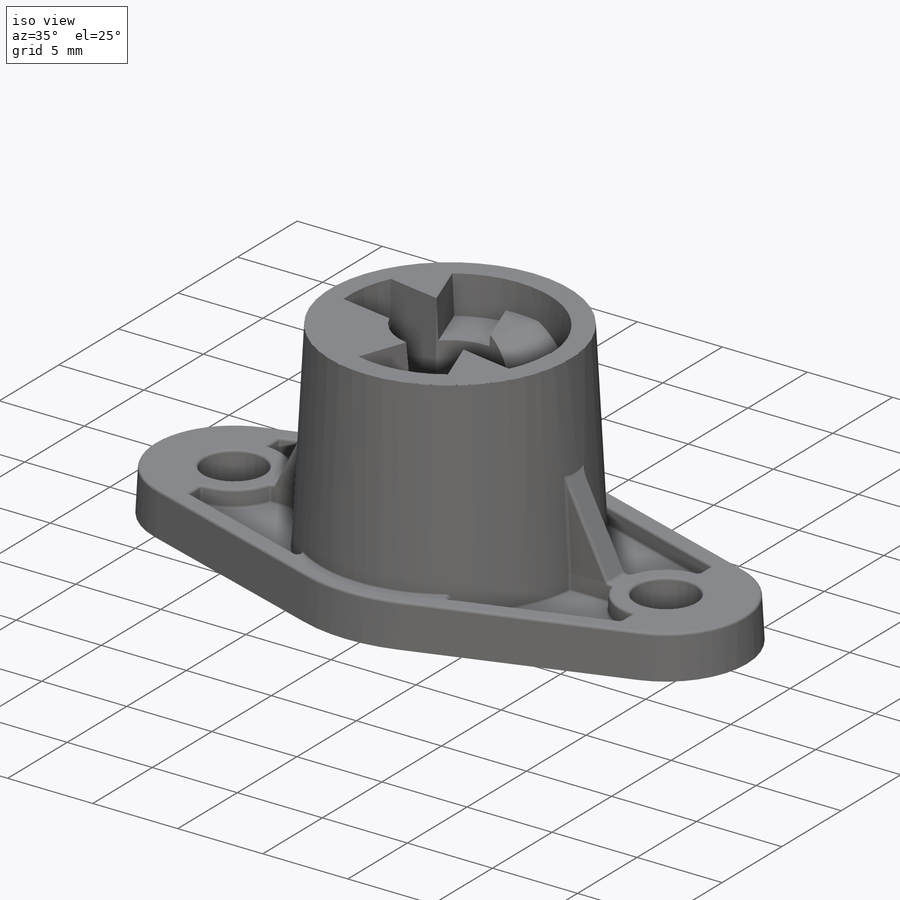
[diagram: iso view]
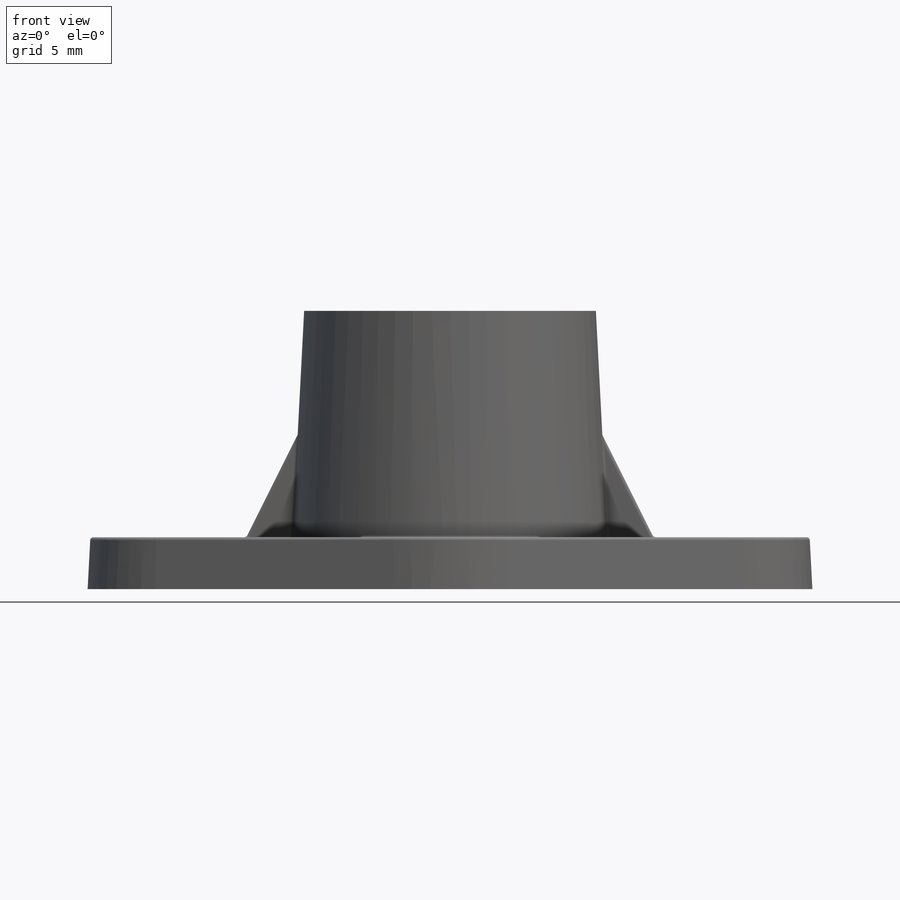
[diagram: front view]
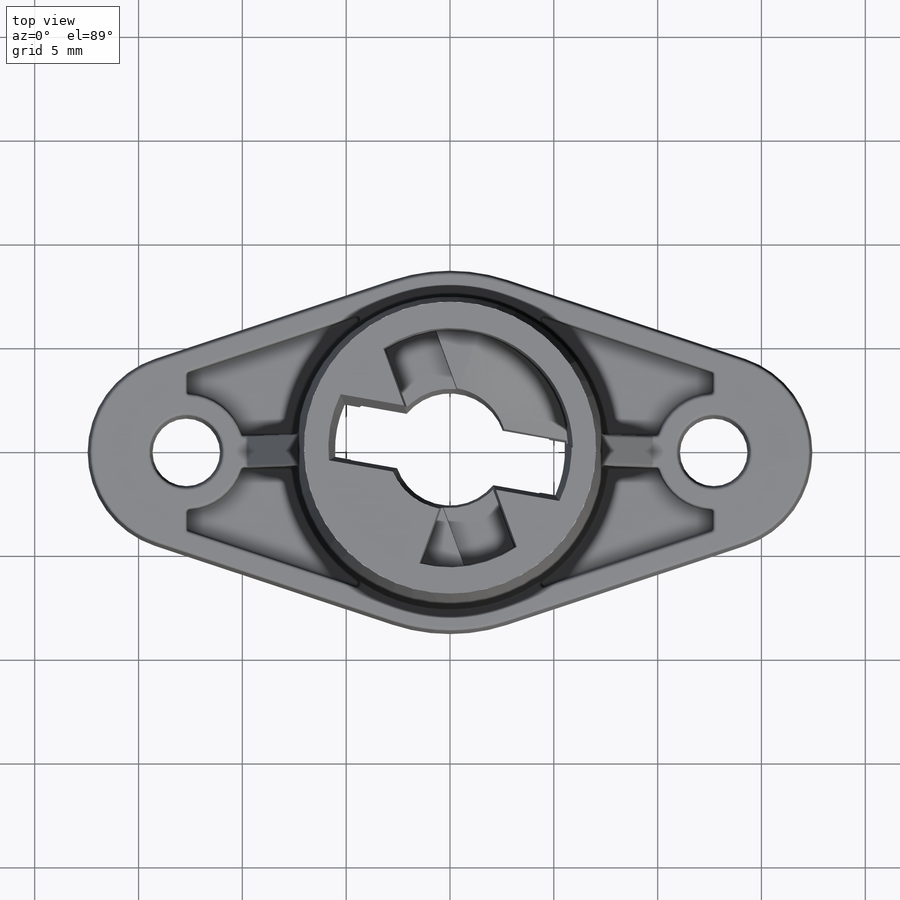
[diagram: top view]
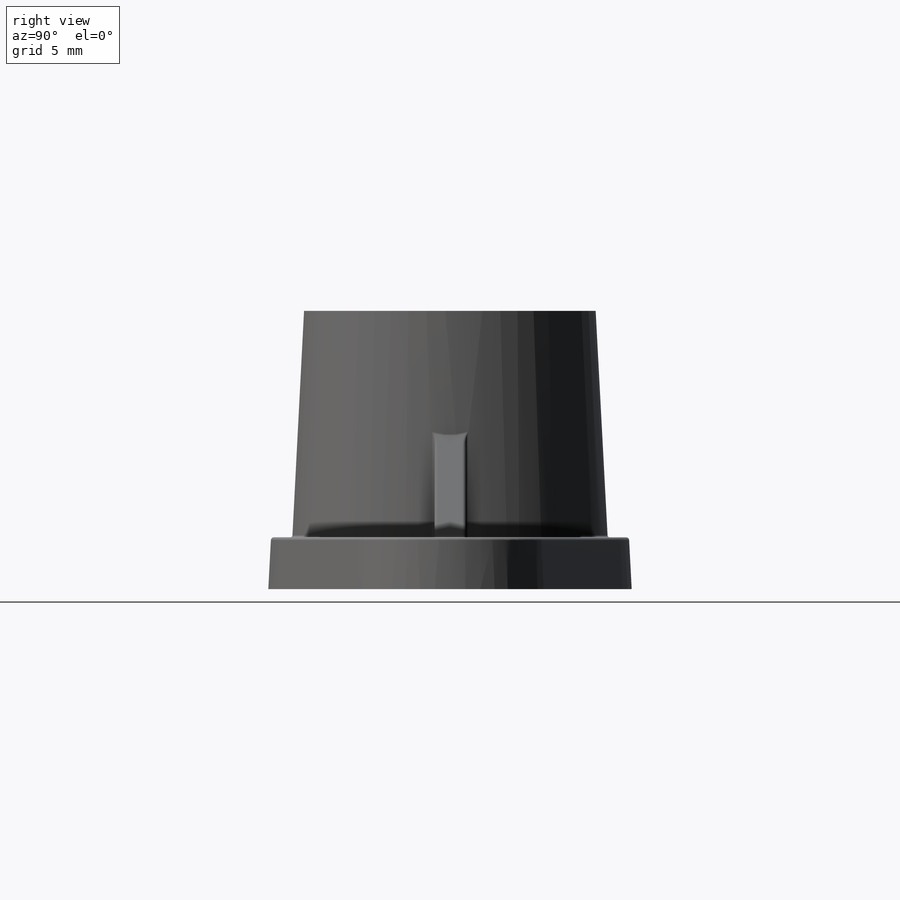
[diagram: right view]
SOLIDWORKS PART (.sldprt)
format: sldprt  version: not decoded by parser v0  size: 1,169,920 bytes
history: native  units: mm
features: sketch x15, plane x8, cut_extrude x6, fillet x6, extrude x3, mirror x2, sweep x2, material x1, chamfer x1, helix x1, pattern_circular x1 + 2 further entries (+11 scaffold rows collapsed)
feature tree (59):
  scaffold x11  (default folders/planes/origin — collapsed)
  material  "Material <nicht festgelegt>"
  plane  "Vorne"
  plane  "Oben"
  plane  "Rechts"
  sketch  "Skizze1"  dims[c1.D3=3.25mm c2.D3=3.25mm c2.D4=~15.01586mm c3.D3=3.25mm c3.D4=17.5mm c3.D5=9.5mm c4.D3=3.25mm c4.D6=8.75mm c4.D1=12.7mm c4.D2=25.4mm c5.D1=12.7mm c5.D2=25.4mm]
  extrude  "Linear austragen1"  Depth=2.5mm
  sketch  "Skizze2"  dims[D1=15.2mm]
  extrude  "Linear austragen2"  Depth=10.9mm
  sketch  "Skizze5"  dims[c1.D1=5.0mm c1.D2=2.0mm c2.D1=2.5mm c2.D2=5.0mm c2.D3=5.0mm c3.D3=90.0deg c4.D3=~0.548501mm c4.D2=5.2mm c5.D3=0.2mm]
  extrude  "Linear austragen5"  Depth=1.5mm
  mirror  "Spiegeln2"
  sketch  "Skizze3"  dims[D6=15.2mm D7=~8.342742mm D1=1.0mm D2=1.0mm D3=1.0mm D4=0.75mm D5=1.5mm]
  cut_extrude  "Linear austragen3"  Depth=1mm
  fillet  "Verrundung20"  Radius=0.15mm
  fillet  "Verrundung22"  Radius=0.2mm
  fillet  "Verrundung25"  Radius=0.15mm
  fillet  "Verrundung28"  Radius=0.1mm
  fillet  "Verrundung29"  Radius=0.15mm
  plane  "Bohrung D=11 u. D=5,4"  Offset=7.95mm
  sketch  "Skizze8"  dims[D1=~6.291744mm]
  cut_extrude  "Linear austragen8"  [1 undecoded]
  chamfer  "Fase1"  Distance=2mm Angle=45deg
  fillet  "Verrundung30"  Radius=3mm
  sketch  "Skizze10"  dims[D1=~3.434811mm]
  cut_extrude  "Linear austragen10"  [1 undecoded]
  plane  "Hilfsebene Rampe innen"  Offset=4.95mm
  sketch  "Skizze11"  dims[c1.D1=3.0mm c1.D2=0.74mm c1.D3=~16.185842mm c2.D3=3.0deg c3.D3=~4.758984mm c3.D2=~3.094534mm c4.D2=177.0deg c5.D2=~0.162178mm c6.D2=177.0deg c7.D2=4.82mm]
  sketch  "Skizze13"
  helix  "Spirale/Helix1"  Pitch=2.5mm
  sweep  "Austragung1"
  "Achse1"
  pattern_circular  "Kreismuster1"  Count=2 Angle=180deg
  mirror  "Spiegeln3"
  sketch  "Skizze15"  dims[c1.D2=11.15mm c1.D1=~36.13968mm c2.D1=10.0deg c3.D1=~36.13968mm c4.D1=10.0deg c4.D3=1.33mm c4.D4=1.33mm]
  cut_extrude  "Linear austragen12"  Depth=7.95mm
  plane  "Hilfsebene Sitzfläche"  Offset=11.2mm
  sketch  "Skizze16"  dims[c1.D4=11.3mm c1.D1=~11.466967mm c2.D1=20.0deg c2.D2=1.27mm c2.D3=1.27mm]
  cut_extrude  "Linear austragen13"  [1 undecoded]
  plane  "Ebene6"  Offset=0.58mm
  sketch  "Skizze20"  dims[c1.D1=1.2mm c1.D2=~3.500514mm c2.D2=20.0deg c2.D3=~14.778424mm c3.D3=20.0deg c3.D2=~2.910765mm c4.D2=20.0deg]
  cut_extrude  "Linear austragen16"  Depth=1.62mm
  plane  "Ebene7"  Offset=0.1mm
  "Hilfsachse Rampe"
  sketch  "Skizze25"
  sketch  "Skizze31"
  sketch  "Skizze29"  dims[c1.D2=~1718.739255mm c1.D1=~2.789264mm c2.D1=~1.09128deg c3.D1=5.0mm c3.D2=~992.084209mm]
  sketch  "Skizze30"  dims[Spirale/Helix5=0.0 D3=3.08mm D4=14.0mm D7=170.0deg]
  sweep  "Schnitt-Austragung5"
decode coverage: 27 of 37 modeling features carry decoded parameters; 2 rows unclassified (native names shown)
note: ~ marks probable driven/reference dimensions
note: 3 parameter values undecoded
summary: no parameter record found for 3 features
note: suppression state not decoded; provenance and decode notes live in map.json
